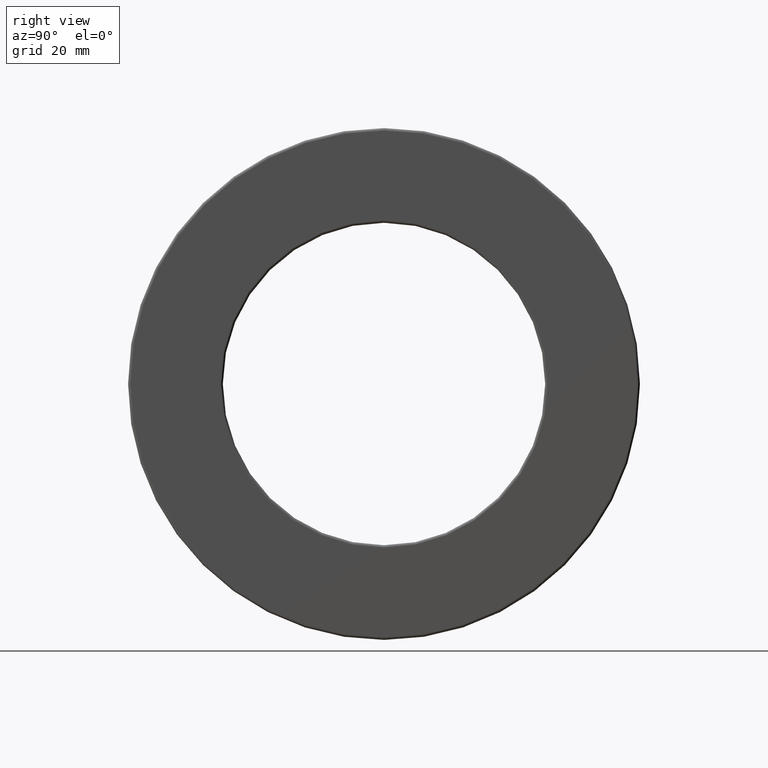
[diagram: clean part render]
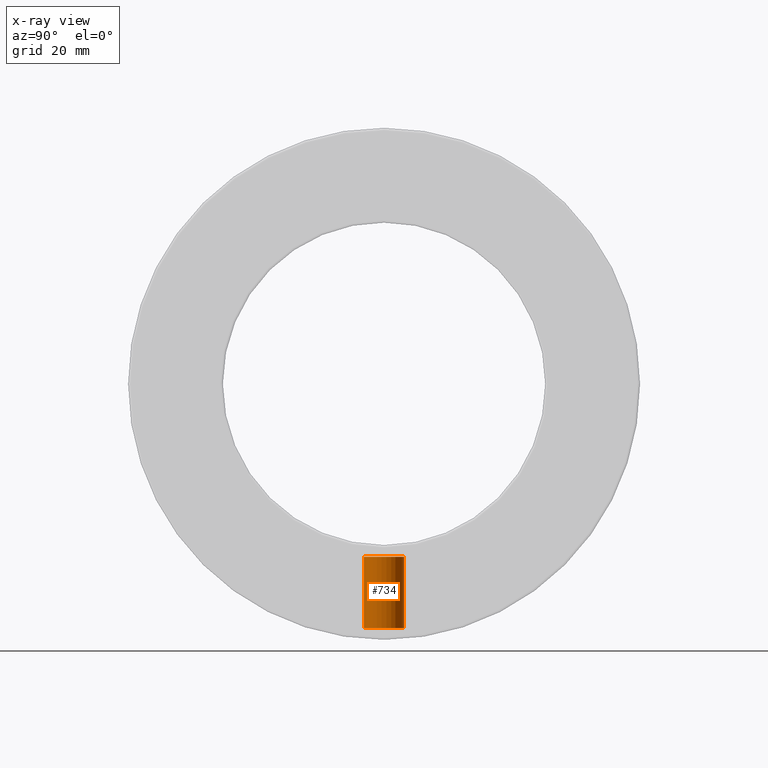
[diagram: x-ray — body ghosted, one internal face saturated and labeled with its STEP entity id]
A machine part, right view, then the same camera in x-ray: the body is ghosted and one INTERNAL B-rep face — a face not visible from any outside direction — is saturated and labeled: STEP entity #734.
In plain terms, the highlighted cylindrical surface (bore or boss wall) has radius 3.9624 mm, axis along (0, -0, -1).
Its self-contained STEP definition (entity closure, byte-faithful):
#89 = CARTESIAN_POINT ( 'NONE',  ( 0.0000000000000000000, 0.1559999999999932300, -1.894375000000000800 ) ) ;
#124 = CIRCLE ( 'NONE', #753, 0.1560000000000000000 ) ;
#159 = DIRECTION ( 'NONE',  ( 0.0000000000000000000, -3.491481338843133400E-015, -1.000000000000000000 ) ) ;
#379 = VERTEX_POINT ( 'NONE', #89 ) ;
#485 = AXIS2_PLACEMENT_3D ( 'NONE', #1449, #995, #772 ) ;
#573 = ORIENTED_EDGE ( 'NONE', *, *, #1340, .T. ) ;
#588 = AXIS2_PLACEMENT_3D ( 'NONE', #640, #1427, #975 ) ;
#619 = FACE_OUTER_BOUND ( 'NONE', #755, .T. ) ;
#640 = CARTESIAN_POINT ( 'NONE',  ( 0.0000000000000000000, -6.614174961270962100E-015, -1.894375000000000100 ) ) ;
#734 = ADVANCED_FACE ( 'NONE', ( #946, #619 ), #833, .T. ) ;
#753 = AXIS2_PLACEMENT_3D ( 'NONE', #954, #159, #1393 ) ;
#755 = EDGE_LOOP ( 'NONE', ( #913 ) ) ;
#772 = DIRECTION ( 'NONE',  ( 0.0000000000000000000, 1.000000000000000000, -3.491481338843133400E-015 ) ) ;
#833 = CYLINDRICAL_SURFACE ( 'NONE', #485, 0.1559999999999999200 ) ;
#859 = VERTEX_POINT ( 'NONE', #1039 ) ;
#913 = ORIENTED_EDGE ( 'NONE', *, *, #1117, .F. ) ;
#946 = FACE_OUTER_BOUND ( 'NONE', #1353, .T. ) ;
#954 = CARTESIAN_POINT ( 'NONE',  ( 0.0000000000000000000, -4.678584994049799200E-015, -1.340000000000000100 ) ) ;
#975 = DIRECTION ( 'NONE',  ( 0.0000000000000000000, 1.000000000000000000, -3.502369222646494500E-015 ) ) ;
#995 = DIRECTION ( 'NONE',  ( 0.0000000000000000000, -3.491481338843133400E-015, -1.000000000000000000 ) ) ;
#1039 = CARTESIAN_POINT ( 'NONE',  ( 0.0000000000000000000, 0.1559999999999953100, -1.340000000000000700 ) ) ;
#1117 = EDGE_CURVE ( 'NONE', #379, #379, #1316, .T. ) ;
#1316 = CIRCLE ( 'NONE', #588, 0.1559999999999998600 ) ;
#1340 = EDGE_CURVE ( 'NONE', #859, #859, #124, .T. ) ;
#1353 = EDGE_LOOP ( 'NONE', ( #573 ) ) ;
#1393 = DIRECTION ( 'NONE',  ( 0.0000000000000000000, 1.000000000000000000, -3.502369222646491400E-015 ) ) ;
#1427 = DIRECTION ( 'NONE',  ( 0.0000000000000000000, -3.491481338843133400E-015, -1.000000000000000000 ) ) ;
#1449 = CARTESIAN_POINT ( 'NONE',  ( 0.0000000000000000000, 0.0000000000000000000, 0.0000000000000000000 ) ) ;